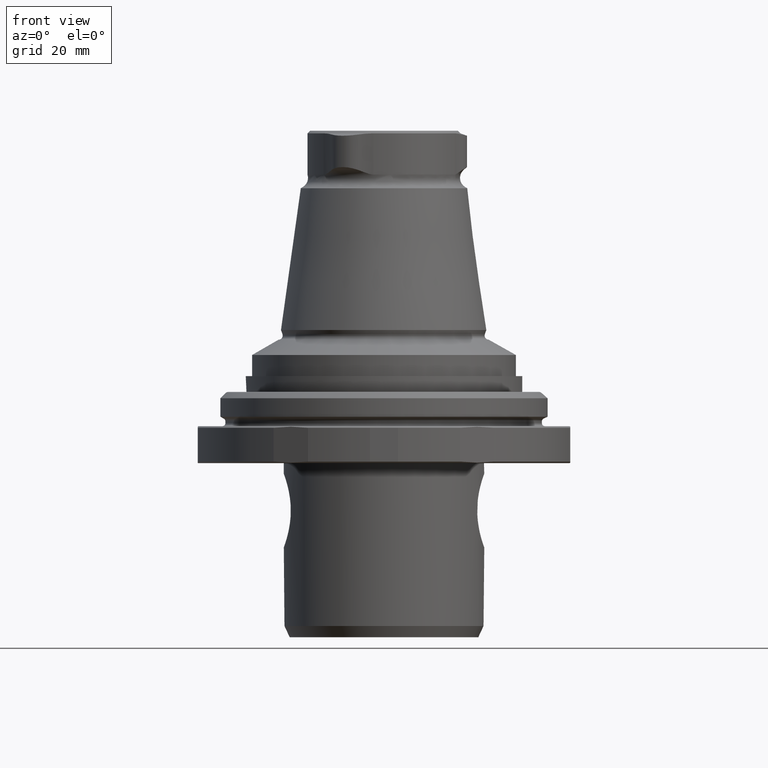
[diagram: clean part render]
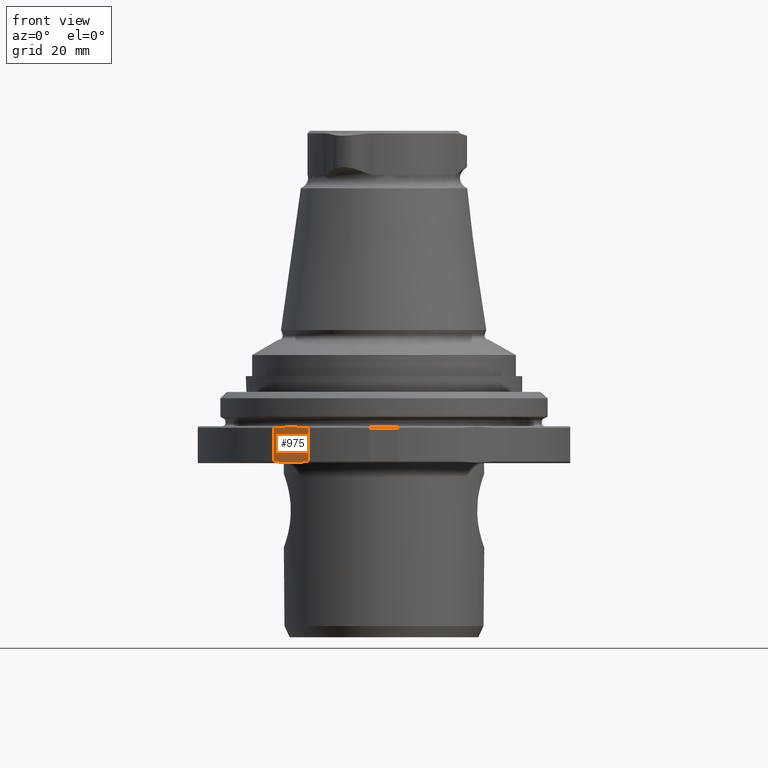
[diagram: same view with one face highlighted and labeled with its STEP entity id]
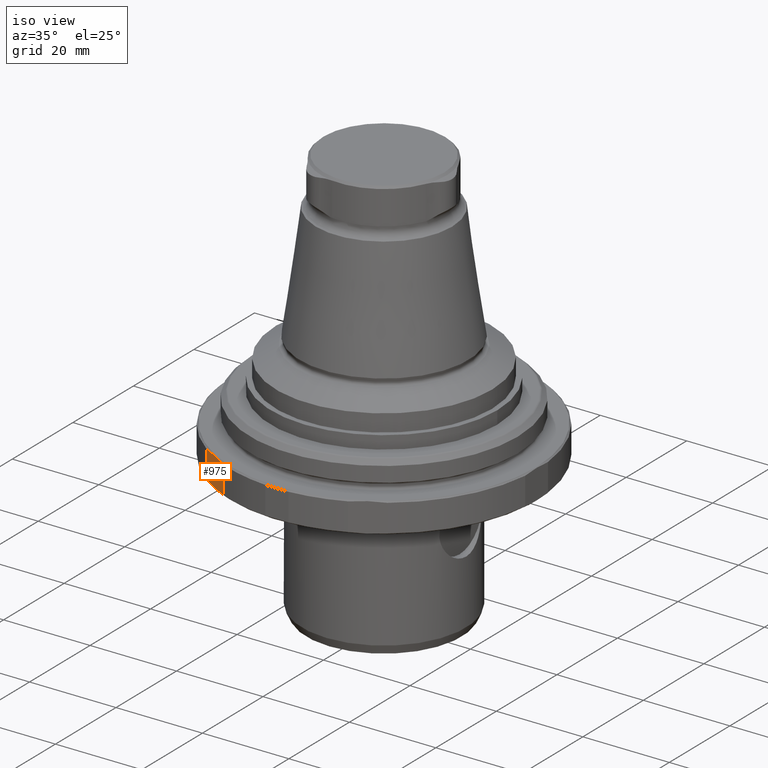
[diagram: same view with one face highlighted and labeled with its STEP entity id]
A machine part, front view. The second image highlights one B-rep face of the part: STEP entity #975.
A second angle (iso view) of the same face is appended — the face is thin or edge-on in the first view.
In plain terms, the highlighted planar face has unit normal (0.5, 0.866, -0).
Its self-contained STEP definition (entity closure, byte-faithful):
#45=PLANE('',#1102);
#75=LINE('',#1775,#105);
#76=LINE('',#1830,#106);
#105=VECTOR('',#1314,1000.);
#106=VECTOR('',#1333,1000.);
#210=B_SPLINE_CURVE_WITH_KNOTS('',3,(#1766,#1767,#1768,#1769),
 .UNSPECIFIED.,.F.,.F.,(4,4),(0.00301971742095615,0.0105389064051034),
 .UNSPECIFIED.);
#212=B_SPLINE_CURVE_WITH_KNOTS('',3,(#1784,#1785,#1786,#1787),
 .UNSPECIFIED.,.F.,.F.,(4,4),(0.0142564267081391,0.0217467200872314),
 .UNSPECIFIED.);
#396=ORIENTED_EDGE('',*,*,#593,.F.);
#397=ORIENTED_EDGE('',*,*,#580,.F.);
#398=ORIENTED_EDGE('',*,*,#577,.F.);
#399=ORIENTED_EDGE('',*,*,#574,.F.);
#574=EDGE_CURVE('',#688,#689,#210,.T.);
#577=EDGE_CURVE('',#689,#691,#75,.T.);
#580=EDGE_CURVE('',#691,#693,#212,.T.);
#593=EDGE_CURVE('',#693,#688,#76,.F.);
#688=VERTEX_POINT('',#1765);
#689=VERTEX_POINT('',#1770);
#691=VERTEX_POINT('',#1776);
#693=VERTEX_POINT('',#1788);
#771=EDGE_LOOP('',(#396,#397,#398,#399));
#867=FACE_BOUND('',#771,.T.);
#975=ADVANCED_FACE('',(#867),#45,.F.);
#1102=AXIS2_PLACEMENT_3D('',#1832,#1335,#1336);
#1314=DIRECTION('',(-5.47430718319515E-16,-9.52839907700963E-18,-1.));
#1333=DIRECTION('',(-5.47430718319515E-16,-9.52839907700963E-18,-1.));
#1335=DIRECTION('',(0.499999999999999,0.866025403784439,-2.81967219457162E-16));
#1336=DIRECTION('',(-5.47430718319515E-16,-9.52839907700963E-18,-1.));
#1765=CARTESIAN_POINT('',(-20.9088341473601,-28.6892079813681,-1.29999999999998));
#1766=CARTESIAN_POINT('',(-20.9088341473601,-28.6892079813681,-1.29999999999996));
#1767=CARTESIAN_POINT('',(-18.7460075439068,-29.9379165030824,-1.03527537313976));
#1768=CARTESIAN_POINT('',(-16.5729910388237,-31.1925081672456,-1.03294999360348));
#1769=CARTESIAN_POINT('',(-14.39116585264,-32.4521855258135,-1.29999999999996));
#1770=CARTESIAN_POINT('',(-14.39116585264,-32.4521855258135,-1.29999999999998));
#1775=CARTESIAN_POINT('',(-14.39116585264,-32.4521855258135,-0.999999999999981));
#1776=CARTESIAN_POINT('',(-14.39116585264,-32.4521855258135,-7.69999999999999));
#1784=CARTESIAN_POINT('',(-14.39116585264,-32.4521855258135,-7.70000000000001));
#1785=CARTESIAN_POINT('',(-16.5729910388237,-31.1925081672456,-7.96705000639647));
#1786=CARTESIAN_POINT('',(-18.7460075439068,-29.9379165030824,-7.9647246268602));
#1787=CARTESIAN_POINT('',(-20.9088341473601,-28.6892079813681,-7.7));
#1788=CARTESIAN_POINT('',(-20.9088341473601,-28.6892079813681,-7.69999999999998));
#1830=CARTESIAN_POINT('',(-20.9088341473601,-28.6892079813681,-0.999999999999977));
#1832=CARTESIAN_POINT('',(-17.65,-30.5706967535908,-4.49999999999998));